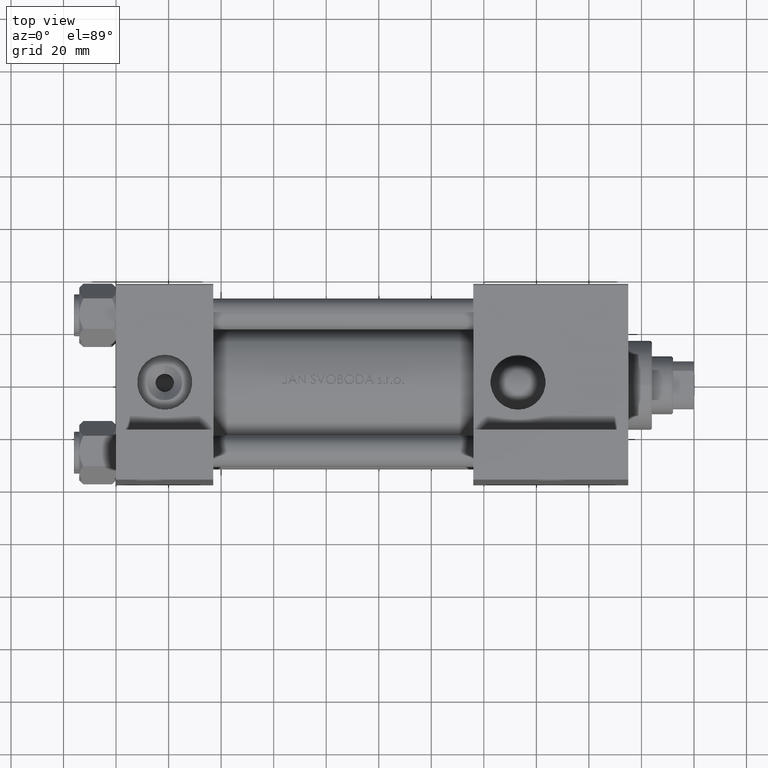
[diagram: clean part render]
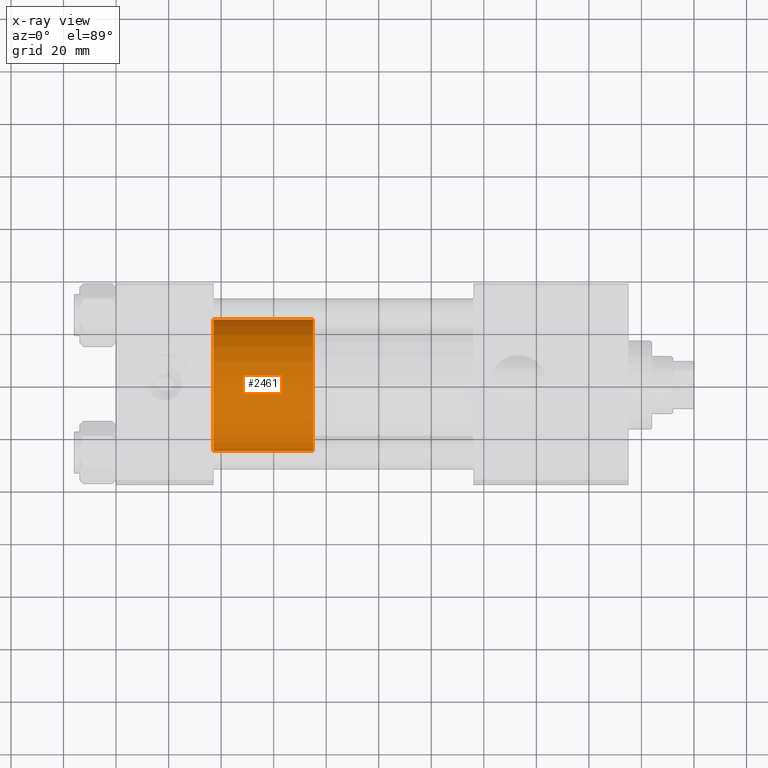
[diagram: x-ray — body ghosted, one internal face saturated and labeled with its STEP entity id]
A machine part, top view, then the same camera in x-ray: the body is ghosted and one INTERNAL B-rep face — a face not visible from any outside direction — is saturated and labeled: STEP entity #2461.
In plain terms, the highlighted cylindrical surface (partial cylindrical patch) has radius 25 mm, axis along (-1, 0, 0).
Its self-contained STEP definition (entity closure, byte-faithful):
#2461 = ADVANCED_FACE ( 'NONE', ( #43037 ), #20850, .T. ) ;
#3622 = LINE ( 'NONE', #27005, #32716 ) ;
#5256 = ORIENTED_EDGE ( 'NONE', *, *, #12641, .T. ) ;
#7266 = LINE ( 'NONE', #30409, #19038 ) ;
#7855 = CARTESIAN_POINT ( 'NONE',  ( 25.00000000000000000, 3.061616997868383043E-15, 38.00000000000000000 ) ) ;
#10238 = DIRECTION ( 'NONE',  ( 1.000000000000000000, 0.000000000000000000, 0.000000000000000000 ) ) ;
#10386 = CIRCLE ( 'NONE', #46956, 25.00000000000000000 ) ;
#12641 = EDGE_CURVE ( 'NONE', #26085, #30267, #7266, .T. ) ;
#12665 = DIRECTION ( 'NONE',  ( -1.000000000000000000, 0.000000000000000000, 0.000000000000000000 ) ) ;
#17806 = EDGE_CURVE ( 'NONE', #24348, #22437, #3622, .T. ) ;
#19038 = VECTOR ( 'NONE', #22434, 1000.000000000000000 ) ;
#20850 = CYLINDRICAL_SURFACE ( 'NONE', #41081, 25.00000000000000000 ) ;
#20998 = ORIENTED_EDGE ( 'NONE', *, *, #34817, .F. ) ;
#21211 = CARTESIAN_POINT ( 'NONE',  ( -25.00000000000000000, 0.000000000000000000, 38.00000000000000000 ) ) ;
#21233 = AXIS2_PLACEMENT_3D ( 'NONE', #29313, #47509, #21587 ) ;
#21587 = DIRECTION ( 'NONE',  ( 1.000000000000000000, 0.000000000000000000, 0.000000000000000000 ) ) ;
#22434 = DIRECTION ( 'NONE',  ( -0.000000000000000000, -0.000000000000000000, -1.000000000000000000 ) ) ;
#22437 = VERTEX_POINT ( 'NONE', #39919 ) ;
#24348 = VERTEX_POINT ( 'NONE', #7855 ) ;
#24660 = ORIENTED_EDGE ( 'NONE', *, *, #17806, .F. ) ;
#26085 = VERTEX_POINT ( 'NONE', #21211 ) ;
#27005 = CARTESIAN_POINT ( 'NONE',  ( 25.00000000000000000, 3.061616997868383043E-15, 38.00000000000000000 ) ) ;
#29313 = CARTESIAN_POINT ( 'NONE',  ( 0.000000000000000000, 0.000000000000000000, 38.00000000000000000 ) ) ;
#30267 = VERTEX_POINT ( 'NONE', #48450 ) ;
#30409 = CARTESIAN_POINT ( 'NONE',  ( -25.00000000000000000, 0.000000000000000000, 38.00000000000000000 ) ) ;
#31589 = DIRECTION ( 'NONE',  ( -0.000000000000000000, -0.000000000000000000, -1.000000000000000000 ) ) ;
#32716 = VECTOR ( 'NONE', #42202, 1000.000000000000000 ) ;
#32818 = EDGE_LOOP ( 'NONE', ( #24660, #20998, #5256, #43060 ) ) ;
#33382 = CARTESIAN_POINT ( 'NONE',  ( 0.000000000000000000, 0.000000000000000000, 0.000000000000000000 ) ) ;
#34817 = EDGE_CURVE ( 'NONE', #26085, #24348, #47493, .T. ) ;
#35798 = CARTESIAN_POINT ( 'NONE',  ( 0.000000000000000000, 0.000000000000000000, 38.00000000000000000 ) ) ;
#39919 = CARTESIAN_POINT ( 'NONE',  ( 25.00000000000000000, 3.061616997868383043E-15, 0.000000000000000000 ) ) ;
#41081 = AXIS2_PLACEMENT_3D ( 'NONE', #35798, #31589, #12665 ) ;
#42202 = DIRECTION ( 'NONE',  ( -0.000000000000000000, -0.000000000000000000, -1.000000000000000000 ) ) ;
#43037 = FACE_OUTER_BOUND ( 'NONE', #32818, .T. ) ;
#43060 = ORIENTED_EDGE ( 'NONE', *, *, #45670, .T. ) ;
#44348 = DIRECTION ( 'NONE',  ( 0.000000000000000000, 0.000000000000000000, 1.000000000000000000 ) ) ;
#45670 = EDGE_CURVE ( 'NONE', #30267, #22437, #10386, .T. ) ;
#46956 = AXIS2_PLACEMENT_3D ( 'NONE', #33382, #44348, #10238 ) ;
#47493 = CIRCLE ( 'NONE', #21233, 25.00000000000000000 ) ;
#47509 = DIRECTION ( 'NONE',  ( 0.000000000000000000, 0.000000000000000000, 1.000000000000000000 ) ) ;
#48450 = CARTESIAN_POINT ( 'NONE',  ( -25.00000000000000000, 0.000000000000000000, 0.000000000000000000 ) ) ;